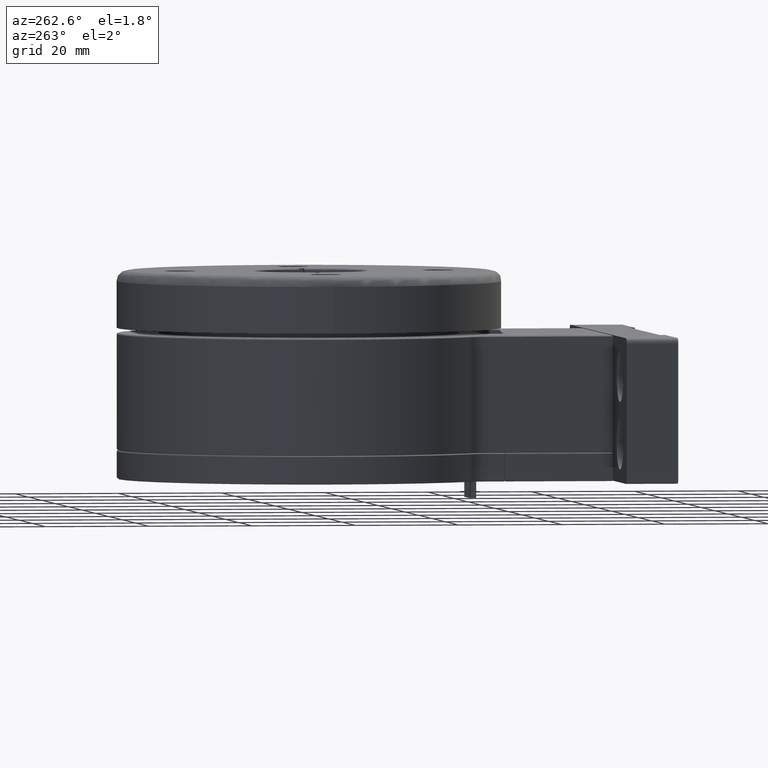
[diagram: clean part render]
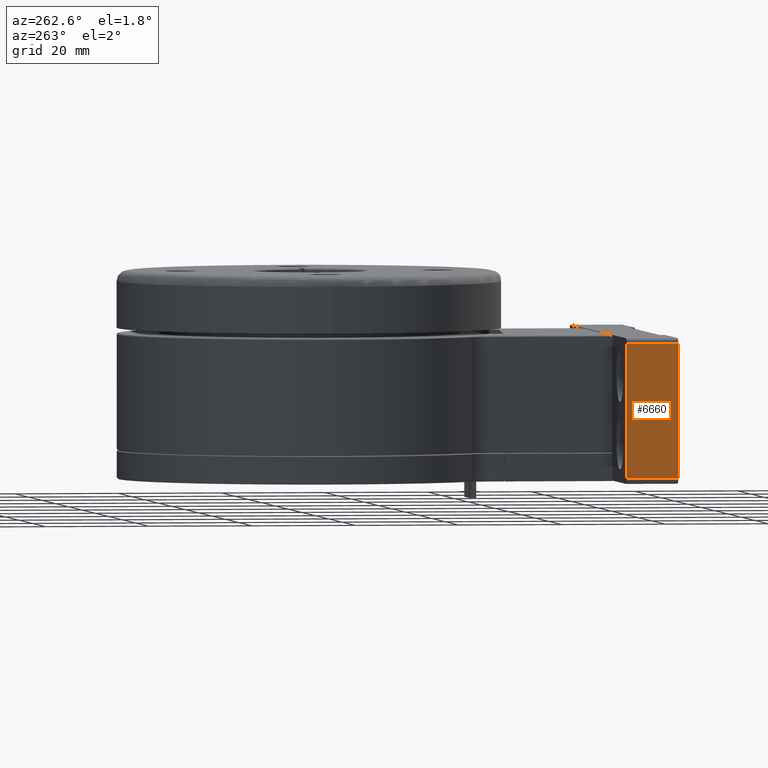
[diagram: same view with one face highlighted and labeled with its STEP entity id]
A machine part, auxiliary view. The second image highlights one B-rep face of the part: STEP entity #6660.
In plain terms, the highlighted planar face has unit normal (1, -0, 0).
Its self-contained STEP definition (entity closure, byte-faithful):
#295 = CARTESIAN_POINT ( 'NONE',  ( -42.49999999999999289, 0.000000000000000000, 14.04999999999999893 ) ) ;
#354 = CARTESIAN_POINT ( 'NONE',  ( -42.49999999999999289, -10.00000000000000000, 1.050000000000000488 ) ) ;
#662 = EDGE_CURVE ( 'NONE', #1458, #5306, #12031, .T. ) ;
#1335 = DIRECTION ( 'NONE',  ( 0.000000000000000000, -0.000000000000000000, -1.000000000000000000 ) ) ;
#1458 = VERTEX_POINT ( 'NONE', #11147 ) ;
#1545 = ORIENTED_EDGE ( 'NONE', *, *, #2167, .F. ) ;
#1650 = ORIENTED_EDGE ( 'NONE', *, *, #4862, .T. ) ;
#1672 = CARTESIAN_POINT ( 'NONE',  ( -42.49999999999999289, -10.00000000000000000, 28.04999999999999716 ) ) ;
#2167 = EDGE_CURVE ( 'NONE', #12561, #1458, #4512, .T. ) ;
#2274 = VECTOR ( 'NONE', #10847, 1000.000000000000000 ) ;
#3556 = VERTEX_POINT ( 'NONE', #9743 ) ;
#3824 = EDGE_CURVE ( 'NONE', #5306, #3556, #5325, .T. ) ;
#4061 = VECTOR ( 'NONE', #10231, 1000.000000000000000 ) ;
#4344 = DIRECTION ( 'NONE',  ( 0.000000000000000000, 0.000000000000000000, -1.000000000000000000 ) ) ;
#4512 = LINE ( 'NONE', #8663, #2274 ) ;
#4862 = EDGE_CURVE ( 'NONE', #12561, #3556, #11835, .T. ) ;
#5061 = EDGE_LOOP ( 'NONE', ( #1545, #1650, #10739, #12810 ) ) ;
#5306 = VERTEX_POINT ( 'NONE', #354 ) ;
#5325 = LINE ( 'NONE', #13298, #4061 ) ;
#5354 = CARTESIAN_POINT ( 'NONE',  ( -42.49999999999999289, 0.000000000000000000, 27.05000000000000071 ) ) ;
#5577 = PLANE ( 'NONE',  #12836 ) ;
#6660 = ADVANCED_FACE ( 'NONE', ( #11829 ), #5577, .F. ) ;
#7682 = DIRECTION ( 'NONE',  ( 1.000000000000000000, -0.000000000000000000, 0.000000000000000000 ) ) ;
#8132 = DIRECTION ( 'NONE',  ( 0.000000000000000000, 0.000000000000000000, -1.000000000000000000 ) ) ;
#8658 = VECTOR ( 'NONE', #1335, 1000.000000000000000 ) ;
#8663 = CARTESIAN_POINT ( 'NONE',  ( -42.49999999999999289, 0.000000000000000000, 27.05000000000000071 ) ) ;
#9743 = CARTESIAN_POINT ( 'NONE',  ( -42.49999999999999289, 0.000000000000000000, 1.050000000000000488 ) ) ;
#10231 = DIRECTION ( 'NONE',  ( 0.000000000000000000, 1.000000000000000000, 0.000000000000000000 ) ) ;
#10333 = VECTOR ( 'NONE', #8132, 1000.000000000000000 ) ;
#10739 = ORIENTED_EDGE ( 'NONE', *, *, #3824, .F. ) ;
#10847 = DIRECTION ( 'NONE',  ( -0.000000000000000000, -1.000000000000000000, -0.000000000000000000 ) ) ;
#11147 = CARTESIAN_POINT ( 'NONE',  ( -42.49999999999999289, -10.00000000000000000, 27.05000000000000071 ) ) ;
#11829 = FACE_OUTER_BOUND ( 'NONE', #5061, .T. ) ;
#11835 = LINE ( 'NONE', #295, #8658 ) ;
#12031 = LINE ( 'NONE', #1672, #10333 ) ;
#12561 = VERTEX_POINT ( 'NONE', #5354 ) ;
#12650 = CARTESIAN_POINT ( 'NONE',  ( -42.49999999999999289, 0.000000000000000000, 28.04999999999999716 ) ) ;
#12810 = ORIENTED_EDGE ( 'NONE', *, *, #662, .F. ) ;
#12836 = AXIS2_PLACEMENT_3D ( 'NONE', #12650, #7682, #4344 ) ;
#13298 = CARTESIAN_POINT ( 'NONE',  ( -42.49999999999999289, 0.000000000000000000, 1.050000000000000488 ) ) ;